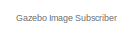
[diagram: root canvas - part 1/2, top left region]
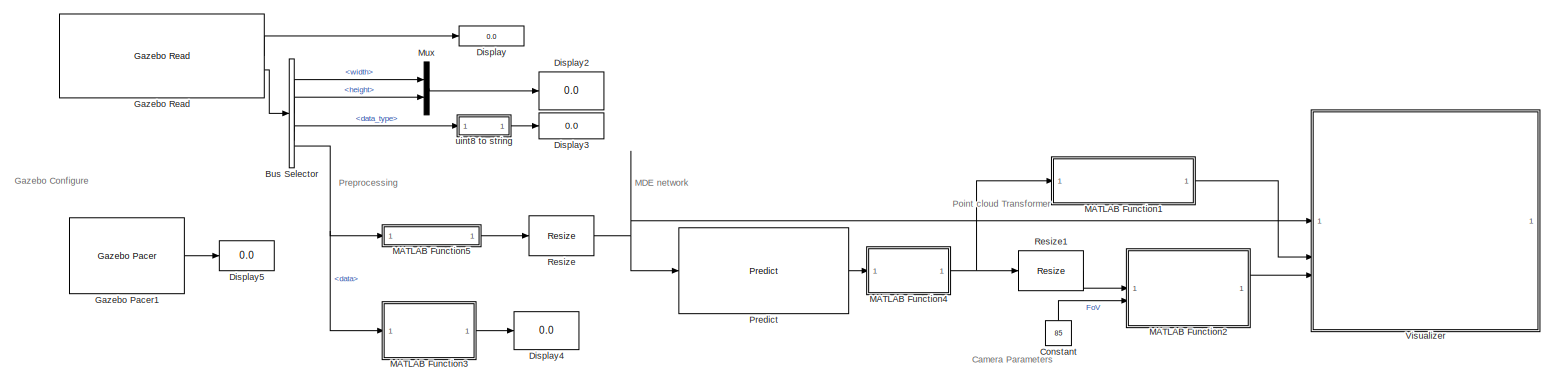
[diagram: root canvas - part 2/2, most of the canvas]
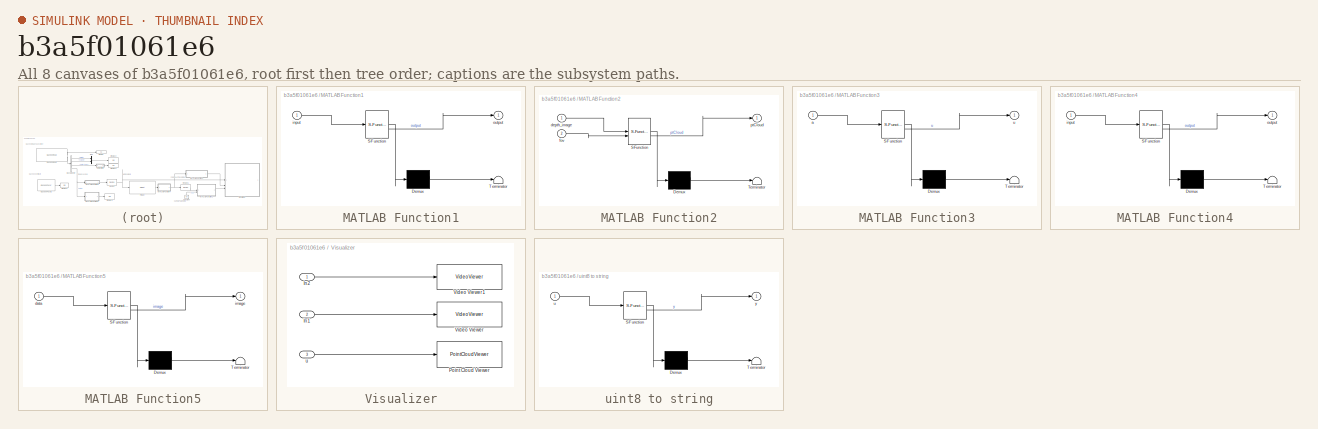
[diagram: thumbnail index - all 8 canvases of the model, root first then tree order]
MODEL slx_b3a5f01061e6
KIND model
CONFIG AbsTol = auto
CONFIG EnableMultiTasking = off
CONFIG FixedStep = auto
CONFIG MaxStep = auto
CONFIG MinStep = auto
CONFIG RelTol = 1e-3
CONFIG SampleTimeConstraint = Unconstrained
CONFIG SolverName = VariableStepAuto
CONFIG StartTime = 0.0
CONFIG StopTime = 10
BLOCK [BusSelector] Bus Selector
  OutputSignals = width,height,data_type,data
BLOCK [Constant] Constant
  NameLocation = left
  Value = 85
  VectorParams1D = off
BLOCK [Display] Display
  Decimation = 1
BLOCK [Display] Display2
  Decimation = 1
BLOCK [Display] Display3
  Decimation = 1
BLOCK [Display] Display4
  Decimation = 1
BLOCK [Display] Display5
  Decimation = 1
BLOCK [Reference] Gazebo Pacer1  REF=robotgazebolib/Gazebo Pacer
  SourceBlock = robotgazebolib/Gazebo Pacer
  SourceType = Gazebo Pacer
BLOCK [Reference] Gazebo Read  REF=robotgazebolib/Gazebo Read
  SourceBlock = robotgazebolib/Gazebo Read
  SourceType = Gazebo Read
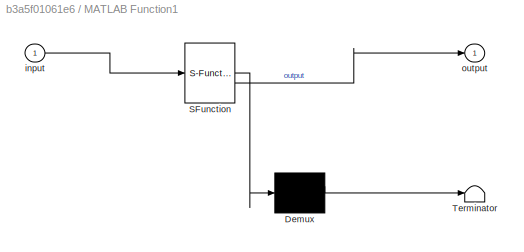
BLOCK [SubSystem] MATLAB Function1
  ErrorFcn = Stateflow.Translate.translate
  PermitHierarchicalResolution = ExplicitOnly
  SFBlockType = MATLAB Function
  TreatAsAtomicUnit = on
BLOCK [Demux] MATLAB Function1/ Demux 
  Outputs = 1
BLOCK [S-Function] MATLAB Function1/ SFunction 
  EnableBusSupport = on
  FunctionName = sf_sfun
  PortCounts = [1 2]
  SFcnIsStateOwnerBlock = off
  SFunctionDeploymentMode = off
  Tag = Stateflow S-Function 3
BLOCK [Terminator] MATLAB Function1/ Terminator 
BLOCK [Inport] MATLAB Function1/input
BLOCK [Outport] MATLAB Function1/output
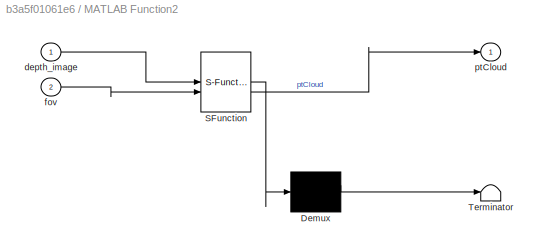
BLOCK [SubSystem] MATLAB Function2
  ErrorFcn = Stateflow.Translate.translate
  PermitHierarchicalResolution = ExplicitOnly
  SFBlockType = MATLAB Function
  TreatAsAtomicUnit = on
BLOCK [Demux] MATLAB Function2/ Demux 
  Outputs = 1
BLOCK [S-Function] MATLAB Function2/ SFunction 
  EnableBusSupport = on
  FunctionName = sf_sfun
  PortCounts = [2 2]
  SFcnIsStateOwnerBlock = off
  SFunctionDeploymentMode = off
  Tag = Stateflow S-Function 4
BLOCK [Terminator] MATLAB Function2/ Terminator 
BLOCK [Inport] MATLAB Function2/depth_image
BLOCK [Inport] MATLAB Function2/fov
  Port = 2
BLOCK [Outport] MATLAB Function2/ptCloud
BLOCK [SubSystem] MATLAB Function3
  ErrorFcn = Stateflow.Translate.translate
  PermitHierarchicalResolution = ExplicitOnly
  SFBlockType = MATLAB Function
  TreatAsAtomicUnit = on
BLOCK [Demux] MATLAB Function3/ Demux 
  Outputs = 1
BLOCK [S-Function] MATLAB Function3/ SFunction 
  EnableBusSupport = on
  FunctionName = sf_sfun
  PortCounts = [1 2]
  SFcnIsStateOwnerBlock = off
  SFunctionDeploymentMode = off
  Tag = Stateflow S-Function 5
BLOCK [Terminator] MATLAB Function3/ Terminator 
BLOCK [Inport] MATLAB Function3/a
BLOCK [Outport] MATLAB Function3/u
BLOCK [SubSystem] MATLAB Function4
  ErrorFcn = Stateflow.Translate.translate
  PermitHierarchicalResolution = ExplicitOnly
  SFBlockType = MATLAB Function
  TreatAsAtomicUnit = on
BLOCK [Demux] MATLAB Function4/ Demux 
  Outputs = 1
BLOCK [S-Function] MATLAB Function4/ SFunction 
  EnableBusSupport = on
  FunctionName = sf_sfun
  PortCounts = [1 2]
  SFcnIsStateOwnerBlock = off
  SFunctionDeploymentMode = off
  Tag = Stateflow S-Function 1
BLOCK [Terminator] MATLAB Function4/ Terminator 
BLOCK [Inport] MATLAB Function4/input
BLOCK [Outport] MATLAB Function4/output
BLOCK [SubSystem] MATLAB Function5
  ErrorFcn = Stateflow.Translate.translate
  PermitHierarchicalResolution = ExplicitOnly
  SFBlockType = MATLAB Function
  TreatAsAtomicUnit = on
BLOCK [Demux] MATLAB Function5/ Demux 
  Outputs = 1
BLOCK [S-Function] MATLAB Function5/ SFunction 
  EnableBusSupport = on
  FunctionName = sf_sfun
  PortCounts = [1 2]
  SFcnIsStateOwnerBlock = off
  SFunctionDeploymentMode = off
  Tag = Stateflow S-Function 7
BLOCK [Terminator] MATLAB Function5/ Terminator 
BLOCK [Inport] MATLAB Function5/data
BLOCK [Outport] MATLAB Function5/image
BLOCK [Mux] Mux
  DisplayOption = bar
  Inputs = 2
BLOCK [Reference] Predict  REF=deeplib/Predict
  SourceBlock = deeplib/Predict
  SourceType = Predict
BLOCK [Reference] Resize  REF=visiongeotforms/Resize
  SourceBlock = visiongeotforms/Resize
  SourceType = Resize
BLOCK [Reference] Resize1  REF=visiongeotforms/Resize
  SourceBlock = visiongeotforms/Resize
  SourceType = Resize
BLOCK [SubSystem] Visualizer
  NameLocation = top
BLOCK [Inport] Visualizer/In1
  Port = 2
BLOCK [Inport] Visualizer/In2
BLOCK [PointCloudViewer] Visualizer/Point Cloud Viewer
  FigPos = [254.6 859.6 419.2 538.4]
  ScopeSpecificationString = vipscopes.PointCloudViewerScopeCfg('CurrentConfiguration', extmgr.ConfigurationSet(extmgr.Configuration('Core','General UI',true),extmgr.Configuration('Core','Source UI',true),extmgr.Configuration('Sources','WiredSimulink',true),extmgr.Configuration('Visuals','Point Cloud',true)),'Version','2023b','Position',[254.6 3.4 419.2 538.4],'WindowStyle','docked')
BLOCK [VideoViewer] Visualizer/Video Viewer
  FigPos = [3.4 609.2 245.6 280.8]
  ScopeSpecificationString = vipscopes.VideoViewerScopeCfg('CurrentConfiguration', extmgr.ConfigurationSet(extmgr.Configuration('Core','General UI',true),extmgr.Configuration('Core','Source UI',true),extmgr.Configuration('Sources','WiredSimulink',true),extmgr.Configuration('Visuals','Video',true),extmgr.Configuration('Tools','Image Navigation Tools',true,'FitToView',true,'Magnification',1.43489583333333),extmgr.Configuration(...<+154ch>
  colormapValue = gray(256)
BLOCK [VideoViewer] Visualizer/Video Viewer1
  FigPos = [3.4 577.2 245.6 256]
  ScopeSpecificationString = vipscopes.VideoViewerScopeCfg('CurrentConfiguration', extmgr.ConfigurationSet(extmgr.Configuration('Core','General UI',true),extmgr.Configuration('Core','Source UI',true),extmgr.Configuration('Sources','WiredSimulink',true),extmgr.Configuration('Visuals','Video',true),extmgr.Configuration('Tools','Image Navigation Tools',true,'FitToView',true),extmgr.Configuration('Tools','Image Tool',true),extmgr...<+119ch>
  colormapValue = gray(256)
BLOCK [Inport] Visualizer/u
  Port = 3
BLOCK [SubSystem] uint8 to string
  ErrorFcn = Stateflow.Translate.translate
  PermitHierarchicalResolution = ExplicitOnly
  SFBlockType = MATLAB Function
  TreatAsAtomicUnit = on
BLOCK [Demux] uint8 to string/ Demux 
  Outputs = 1
BLOCK [S-Function] uint8 to string/ SFunction 
  EnableBusSupport = on
  FunctionName = sf_sfun
  PortCounts = [1 2]
  SFcnIsStateOwnerBlock = off
  SFunctionDeploymentMode = off
  Tag = Stateflow S-Function 6
BLOCK [Terminator] uint8 to string/ Terminator 
BLOCK [Inport] uint8 to string/u
BLOCK [Outport] uint8 to string/y
ANNOTATION (root): Camera Parameters
ANNOTATION (root): Gazebo Configure
ANNOTATION (root): Gazebo Image Subscriber
ANNOTATION (root): MDE network
ANNOTATION (root): Point cloud Transformer
ANNOTATION (root): Preprocessing
LINE Bus Selector:1 -> Mux:1
LINE Bus Selector:2 -> Mux:2
LINE Bus Selector:3 -> uint8 to string:1
NET Bus Selector:4 -> MATLAB Function3:1, MATLAB Function5:1
LINE Constant:1 -> MATLAB Function2:2
LINE Gazebo Pacer1:1 -> Display5:1
LINE Gazebo Read:1 -> Display:1
LINE Gazebo Read:2 -> Bus Selector:1
LINE MATLAB Function1:1 -> Visualizer:2
LINE MATLAB Function2:1 -> Visualizer:3
LINE MATLAB Function3:1 -> Display4:1
NET MATLAB Function4:1 -> MATLAB Function1:1, Resize1:1
LINE MATLAB Function5:1 -> Resize:1
LINE Mux:1 -> Display2:1
LINE Predict:1 -> MATLAB Function4:1
LINE Resize1:1 -> MATLAB Function2:1
NET Resize:1 -> Predict:1, Visualizer:1
LINE Visualizer/In1:1 -> Visualizer/Video Viewer:1
LINE Visualizer/In2:1 -> Visualizer/Video Viewer1:1
LINE Visualizer/u:1 -> Visualizer/Point Cloud Viewer:1
LINE uint8 to string:1 -> Display3:1
note: NET lines group one-source signal fan-out (src -> all destinations, sorted); 1:1 wires keep LINE
CHART MATLAB Function4 states=1 transitions=1
  STATE_LABEL 'eML_blk_kernel()'
  STATE_LABEL 'SCRIPT:\nfunction output = scaler(input)\n\np = [0 -0.0024 8.2238];\ntemp = p(2)*input + p(3);\noutput = 0.4838*temp + 3.129;\n\nend\n\n'
CHART MATLAB Function1 states=1 transitions=1
  STATE_LABEL 'eML_blk_kernel()'
  STATE_LABEL 'SCRIPT:\nfunction output = depthColor(input)\n\noutput = zeros([384 384 3]);\n\ncolor_map = jet(256);\nn_max = max(input(:));\nn_min = min(input(:));\n\ndepth_data_colored = ind2rgb(uint8(256*(input - n_min)/(n_max - n_min)), color_map);\noutput = depth_data_colored;\nend\n\n'
CHART MATLAB Function2 states=1 transitions=1
  STATE_LABEL 'eML_blk_kernel()'
  STATE_LABEL 'SCRIPT:\nfunction ptCloud = depth2ptCloud(depth_image, fov)\n%fov, depth, resolution\n\npixels = 640*480; % from Resolution\ncrop = 10;\nmin_distance = 1;\nmax_distance = 6;   \n\ncnt = 1;\npnt_pol = zeros([pixels,3]);\n%이미지 사이즈가 정해지면 mask 형식으로 간단하게 계산하는 방법도 고려해보기\nfor i=1+crop:480-crop %세로\n    for j=1+crop:640-crop %가로\n        distance = depth_image(i,j);\n\n        %% 기준각 pi/4\n        angle_vert = -((2 * (i -...<+582ch>'
CHART MATLAB Function3 states=1 transitions=1
  STATE_LABEL 'eML_blk_kernel()'
  STATE_LABEL 'SCRIPT:\nfunction u  = dimension(a)\n\nu = size(a);\n\n\nend\n'
CHART uint8 to string states=1 transitions=1
  STATE_LABEL 'eML_blk_kernel()'
  STATE_LABEL "SCRIPT:\nfunction y = convertUInt8VarSizeToString(u)\n\ny = convertCharsToStrings(char(u'));\n"
CHART MATLAB Function5 states=1 transitions=1
  STATE_LABEL 'eML_blk_kernel()'
  STATE_LABEL "SCRIPT:\nfunction image = plotImage(data)\n\ncoder.extrinsic('imshow');\ncoder.extrinsic('helperPlotImage')\n\npersistent h\n\nif isempty(h)\n    h = newplot(figure());\nend\n\ny = zeros(480, 640, 3, 'uint8');\nif ~isempty(data) && ~isscalar(data)\n    y(:) = helperPlotImage(data);\nend\n%imshow(y,'Parent',h);\n\nimage = im2double(y);"
CHART  states=0 transitions=0
CHART  states=0 transitions=0
CHART  states=0 transitions=0
CHART  states=0 transitions=0
CHART  states=0 transitions=0
CHART  states=0 transitions=0
